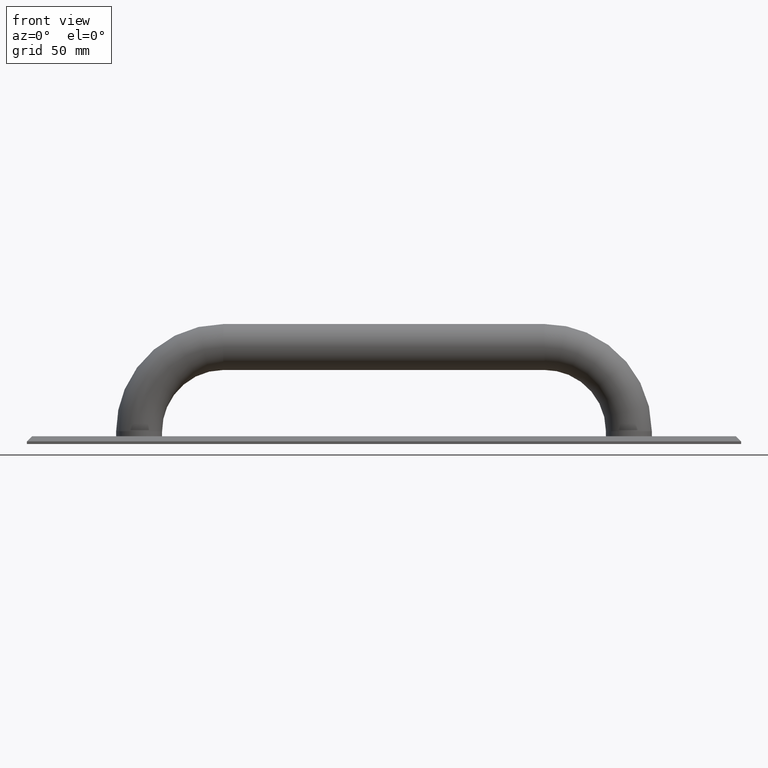
[diagram: clean part render]
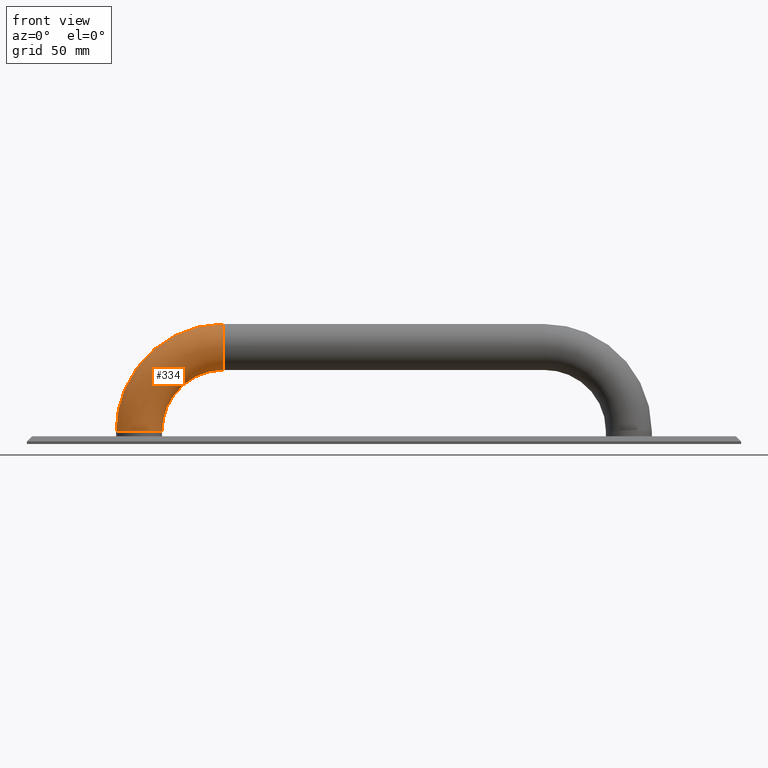
[diagram: same view with one face highlighted and labeled with its STEP entity id]
A machine part, front view. The second image highlights one B-rep face of the part: STEP entity #334.
In plain terms, the highlighted toroidal blend (fillet) surface has major radius 33 mm and minor (blend) radius 9 mm.
Its self-contained STEP definition (entity closure, byte-faithful):
#69=TOROIDAL_SURFACE('',#363,33.0000000000001,9.);
#73=FACE_BOUND('',#122,.T.);
#96=FACE_OUTER_BOUND('',#121,.T.);
#121=EDGE_LOOP('',(#253));
#122=EDGE_LOOP('',(#254));
#163=CIRCLE('',#358,9.);
#167=CIRCLE('',#364,9.);
#181=VERTEX_POINT('',#504);
#185=VERTEX_POINT('',#514);
#211=EDGE_CURVE('',#181,#181,#163,.T.);
#215=EDGE_CURVE('',#185,#185,#167,.T.);
#253=ORIENTED_EDGE('',*,*,#211,.T.);
#254=ORIENTED_EDGE('',*,*,#215,.F.);
#334=ADVANCED_FACE('',(#96,#73),#69,.T.);
#358=AXIS2_PLACEMENT_3D('',#505,#402,#403);
#363=AXIS2_PLACEMENT_3D('',#513,#412,#413);
#364=AXIS2_PLACEMENT_3D('',#515,#414,#415);
#402=DIRECTION('center_axis',(2.47276946393785E-15,0.,1.));
#403=DIRECTION('ref_axis',(1.,0.,-2.47276946393785E-15));
#412=DIRECTION('center_axis',(0.,-1.,0.));
#413=DIRECTION('ref_axis',(0.,0.,-1.));
#414=DIRECTION('center_axis',(1.,0.,-2.52323414687536E-16));
#415=DIRECTION('ref_axis',(-2.52323414687536E-16,0.,-1.));
#504=CARTESIAN_POINT('',(35.,20.,4.99999999999999));
#505=CARTESIAN_POINT('Origin',(44.,20.,4.99999999999996));
#513=CARTESIAN_POINT('Origin',(77.,20.,4.99999999999989));
#514=CARTESIAN_POINT('',(77.,20.,47.));
#515=CARTESIAN_POINT('Origin',(77.,20.,38.));